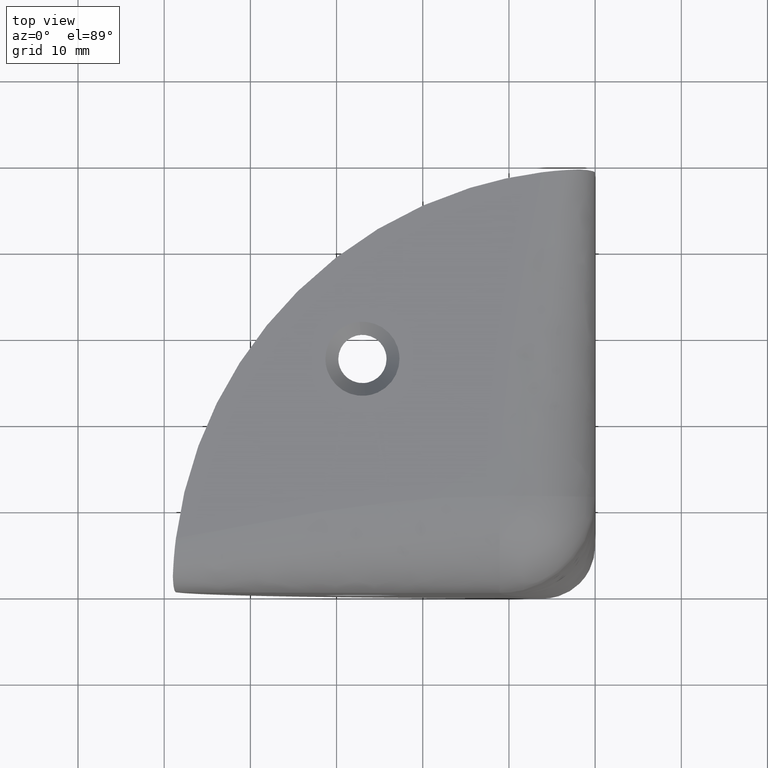
[diagram: clean part render]
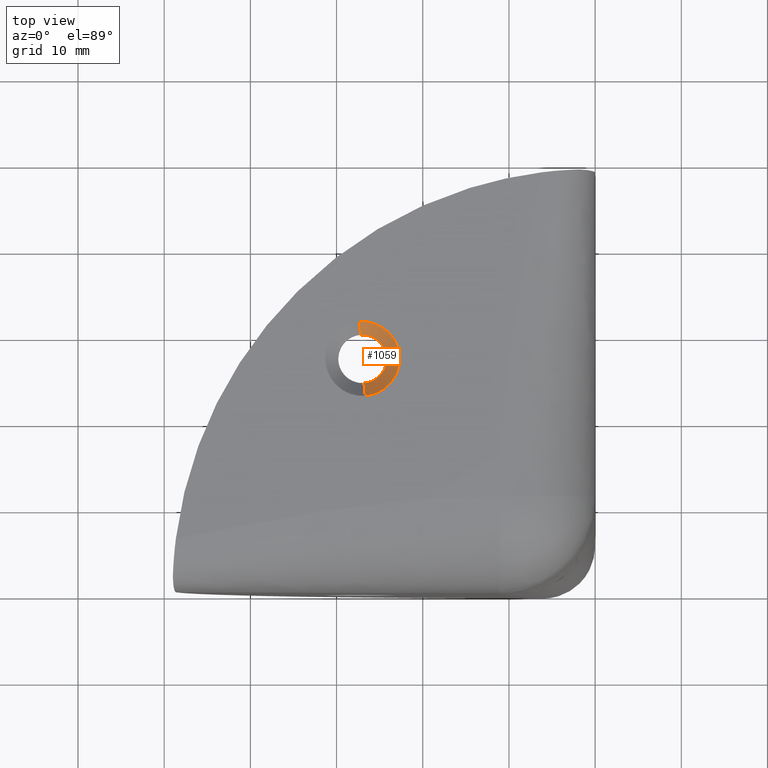
[diagram: same view with one face highlighted and labeled with its STEP entity id]
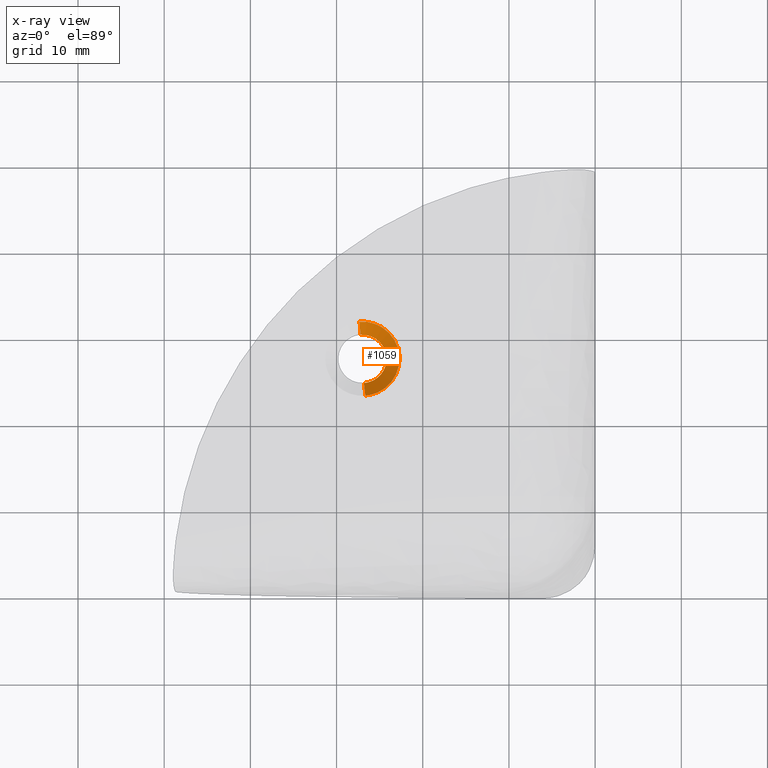
[diagram: x-ray of the same camera — body ghosted, the highlighted face saturated]
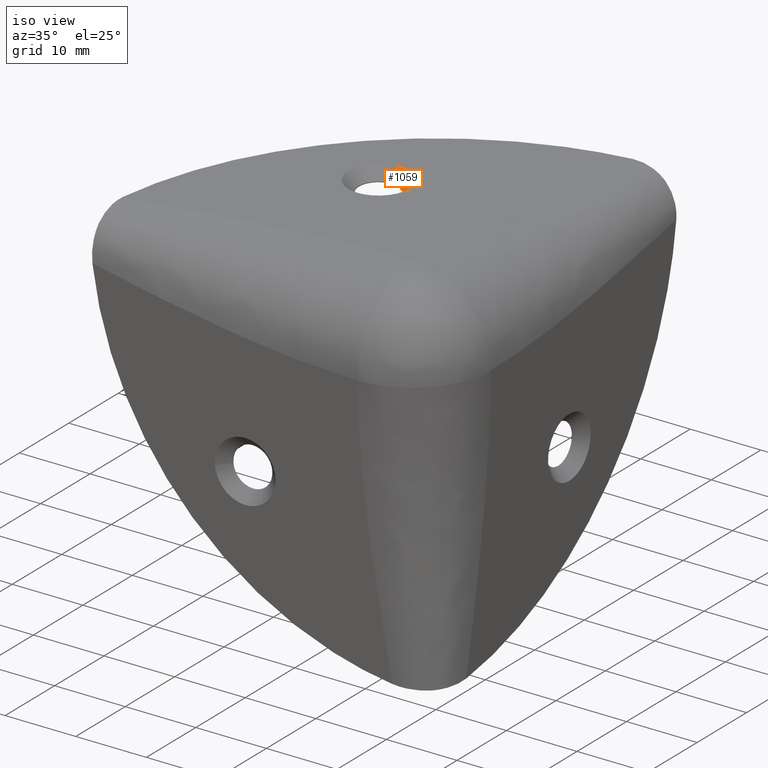
[diagram: same view with one face highlighted and labeled with its STEP entity id]
A machine part, top view. The second image highlights one B-rep face of the part: STEP entity #1059.
The next image is the same camera in x-ray: the body ghosted, the highlighted face saturated — about 0% of this face is hidden behind the body in this view.
A second angle (iso view) of the same face is appended — the face is thin or edge-on in the first view.
In plain terms, the highlighted face is a freeform B-spline surface patch.
Its self-contained STEP definition (entity closure, byte-faithful):
#750=CARTESIAN_POINT('',(-26.680518566305270,29.781713790727611,47.500000000000000));
#751=VERTEX_POINT('',#750);
#752=CARTESIAN_POINT('',(-24.199999999999999,27.0,47.500000000000000));
#753=VERTEX_POINT('',#752);
#754=CARTESIAN_POINT('',(-26.680518566305267,29.781713790727604,47.500000000000007));
#755=CARTESIAN_POINT('',(-24.200000000000003,29.496825188634546,47.500000000000000));
#756=CARTESIAN_POINT('',(-24.199999999999999,27.0,47.500000000000000));
#764=(BOUNDED_CURVE()B_SPLINE_CURVE(2,(#754,#755,#756),.UNSPECIFIED.,.F.,.U.)B_SPLINE_CURVE_WITH_KNOTS((3,3),(0.269767703849928,0.500000000000000),.UNSPECIFIED.)CURVE()GEOMETRIC_REPRESENTATION_ITEM()RATIONAL_B_SPLINE_CURVE((0.957343839088306,0.730266086823174,1.0))REPRESENTATION_ITEM(''));
#765=EDGE_CURVE('',#751,#753,#764,.T.);
#804=CARTESIAN_POINT('',(-26.829064326029421,24.205222549939950,47.500000000256598));
#805=VERTEX_POINT('',#804);
#811=CARTESIAN_POINT('',(-24.199999999999999,27.0,47.500000000000000));
#812=CARTESIAN_POINT('',(-24.199999999999999,24.366022789140438,47.499999999999993));
#813=CARTESIAN_POINT('',(-26.829064326029417,24.205222549939943,47.500000000256598));
#821=(BOUNDED_CURVE()B_SPLINE_CURVE(2,(#811,#812,#813),.UNSPECIFIED.,.F.,.U.)B_SPLINE_CURVE_WITH_KNOTS((3,3),(0.500000000000000,0.739332976857260),.UNSPECIFIED.)CURVE()GEOMETRIC_REPRESENTATION_ITEM()RATIONAL_B_SPLINE_CURVE((1.0,0.719603976160286,0.976072072996557))REPRESENTATION_ITEM(''));
#822=EDGE_CURVE('',#753,#805,#821,.T.);
#849=CARTESIAN_POINT('',(-27.219685567727929,29.791368570407471,47.500000043665473));
#850=VERTEX_POINT('',#849);
#851=CARTESIAN_POINT('',(-27.219685567727936,29.791368570407478,47.500000043665466));
#852=CARTESIAN_POINT('',(-27.110012396332216,29.800000000000004,47.500000000000000));
#853=CARTESIAN_POINT('',(-27.0,29.800000000000001,47.500000000000000));
#854=CARTESIAN_POINT('',(-26.839736173728227,29.800000000000001,47.499999999999993));
#855=CARTESIAN_POINT('',(-26.680518566305267,29.781713790727611,47.500000000000000));
#863=(BOUNDED_CURVE()B_SPLINE_CURVE(2,(#851,#852,#853,#854,#855),.UNSPECIFIED.,.F.,.U.)B_SPLINE_CURVE_WITH_KNOTS((3,2,3),(0.236331288809169,0.250000000000000,0.269767703849929),.UNSPECIFIED.)CURVE()GEOMETRIC_REPRESENTATION_ITEM()RATIONAL_B_SPLINE_CURVE((0.969723331496871,0.983986108729144,1.0,0.976840694363373,0.957343839088305))REPRESENTATION_ITEM(''));
#864=EDGE_CURVE('',#850,#751,#863,.T.);
#952=CARTESIAN_POINT('',(-27.337374111691439,31.286744535055600,49.000000000007972));
#953=VERTEX_POINT('',#952);
#954=CARTESIAN_POINT('',(-27.219685567727929,29.791368570407471,47.500000043665473));
#955=CARTESIAN_POINT('',(-27.337374111691439,31.286744535055600,49.000000000007972));
#956=QUASI_UNIFORM_CURVE('',1,(#954,#955),.UNSPECIFIED.,.F.,.U.);
#957=EDGE_CURVE('',#850,#953,#956,.T.);
#974=CARTESIAN_POINT('',(-26.662625888308568,22.713255464944400,49.000000000007979));
#975=VERTEX_POINT('',#974);
#991=CARTESIAN_POINT('',(-26.829064326029421,24.205222549939950,47.500000000256598));
#992=CARTESIAN_POINT('',(-26.662625888308568,22.713255464944400,49.000000000007979));
#993=QUASI_UNIFORM_CURVE('',1,(#991,#992),.UNSPECIFIED.,.F.,.U.);
#994=EDGE_CURVE('',#805,#975,#993,.T.);
#1000=CARTESIAN_POINT('',(-26.869381580890760,24.239237694217838,47.462499999999984));
#1001=CARTESIAN_POINT('',(-26.826599889843024,24.242604686324132,47.462499999999963));
#1002=CARTESIAN_POINT('',(-24.029272613614079,24.462759117510416,47.462499999999984));
#1003=CARTESIAN_POINT('',(-24.246015865562249,27.216743251948170,47.462499999999977));
#1004=CARTESIAN_POINT('',(-24.462759117510416,29.970727386385924,47.462499999999984));
#1005=CARTESIAN_POINT('',(-27.236279503080343,29.752446598128696,47.462499999999977));
#1006=CARTESIAN_POINT('',(-27.255701281731557,29.750918070999273,47.462499999999970));
#1007=CARTESIAN_POINT('',(-26.794867023473579,22.664291505523295,49.038437500000001));
#1008=CARTESIAN_POINT('',(-26.727679442385828,22.669579282832316,49.038437499999986));
#1009=CARTESIAN_POINT('',(-22.334546571810396,23.015326338053953,49.038437500000015));
#1010=CARTESIAN_POINT('',(-22.674936454932180,27.340389883121780,49.038437500000008));
#1011=CARTESIAN_POINT('',(-23.015326338053953,31.665453428189608,49.038437500000015));
#1012=CARTESIAN_POINT('',(-27.371071079328548,31.322648882558930,49.038437500000001));
#1013=CARTESIAN_POINT('',(-27.401572499352863,31.320248368742437,49.038437499999986));
#1021=(BOUNDED_SURFACE()B_SPLINE_SURFACE(2,1,((#1000,#1007),(#1001,#1008),(#1002,#1009),(#1003,#1010),(#1004,#1011),(#1005,#1012),(#1006,#1013)),.UNSPECIFIED.,.F.,.F.,.U.)B_SPLINE_SURFACE_WITH_KNOTS((3,1,2,1,3),(2,2),(0.0,0.161039366337573,7.349197974369682,14.537356582401790,14.609681914078561),(0.0,2.229257033286398),.UNSPECIFIED.)GEOMETRIC_REPRESENTATION_ITEM()RATIONAL_B_SPLINE_SURFACE(((1.013123622038497,1.013123622038497),(1.006561811019249,1.006561811019249),(0.707106781186548,0.707106781186548),(1.0,1.0),(0.707106781186548,0.707106781186548),(1.002947013324510,1.002947013324510),(1.005894026649020,1.005894026649020)))REPRESENTATION_ITEM('')SURFACE());
#1022=ORIENTED_EDGE('',*,*,#864,.T.);
#1023=ORIENTED_EDGE('',*,*,#765,.T.);
#1024=ORIENTED_EDGE('',*,*,#822,.T.);
#1025=ORIENTED_EDGE('',*,*,#994,.T.);
#1026=CARTESIAN_POINT('',(-22.699999999999999,27.0,49.0));
#1027=VERTEX_POINT('',#1026);
#1028=CARTESIAN_POINT('',(-22.699999999999999,27.0,49.0));
#1029=CARTESIAN_POINT('',(-22.699999999999996,23.025120885983352,48.999999999999986));
#1030=CARTESIAN_POINT('',(-26.662625888308572,22.713255464944407,49.000000000007979));
#1038=(BOUNDED_CURVE()B_SPLINE_CURVE(2,(#1028,#1029,#1030),.UNSPECIFIED.,.F.,.U.)B_SPLINE_CURVE_WITH_KNOTS((3,3),(0.500000000000000,0.736331300627881),.UNSPECIFIED.)CURVE()GEOMETRIC_REPRESENTATION_ITEM()RATIONAL_B_SPLINE_CURVE((1.0,0.723120658610921,0.969723356161619))REPRESENTATION_ITEM(''));
#1039=EDGE_CURVE('',#1027,#975,#1038,.T.);
#1040=ORIENTED_EDGE('',*,*,#1039,.F.);
#1041=CARTESIAN_POINT('',(-27.337374111691442,31.286744535055604,49.000000000007972));
#1042=CARTESIAN_POINT('',(-27.168947460194346,31.299999999999997,49.0));
#1043=CARTESIAN_POINT('',(-27.0,31.300000000000001,49.0));
#1044=CARTESIAN_POINT('',(-22.700000000000003,31.300000000000008,48.999999999999986));
#1045=CARTESIAN_POINT('',(-22.699999999999999,27.0,49.0));
#1053=(BOUNDED_CURVE()B_SPLINE_CURVE(2,(#1041,#1042,#1043,#1044,#1045),.UNSPECIFIED.,.F.,.U.)B_SPLINE_CURVE_WITH_KNOTS((3,2,3),(0.236331300627882,0.250000000000000,0.500000000000000),.UNSPECIFIED.)CURVE()GEOMETRIC_REPRESENTATION_ITEM()RATIONAL_B_SPLINE_CURVE((0.969723356161621,0.983986122575628,1.0,0.707106781186547,1.0))REPRESENTATION_ITEM(''));
#1054=EDGE_CURVE('',#953,#1027,#1053,.T.);
#1055=ORIENTED_EDGE('',*,*,#1054,.F.);
#1056=ORIENTED_EDGE('',*,*,#957,.F.);
#1057=EDGE_LOOP('',(#1022,#1023,#1024,#1025,#1040,#1055,#1056));
#1058=FACE_OUTER_BOUND('',#1057,.T.);
#1059=ADVANCED_FACE('',(#1058),#1021,.F.);